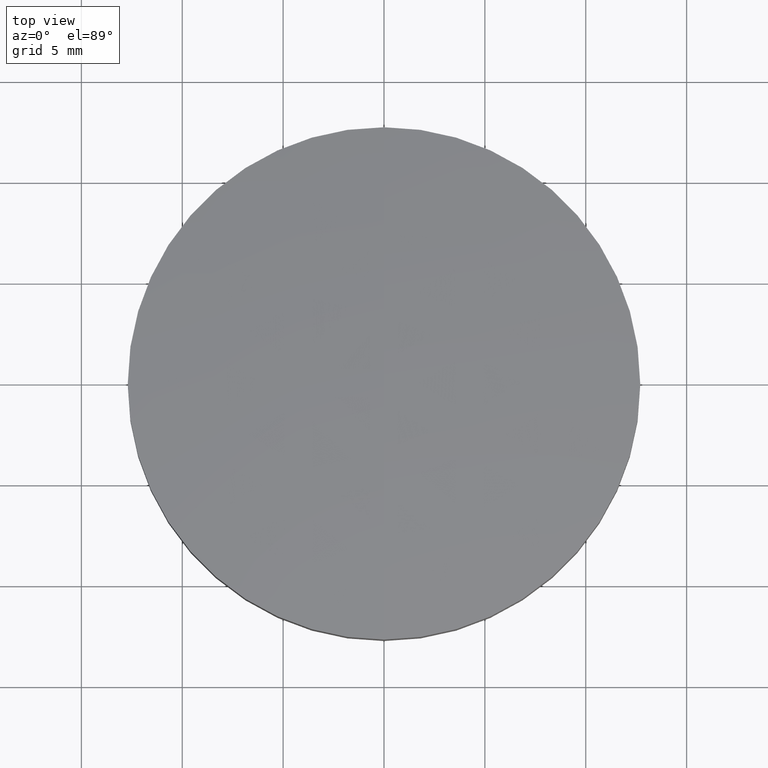
[diagram: clean part render]
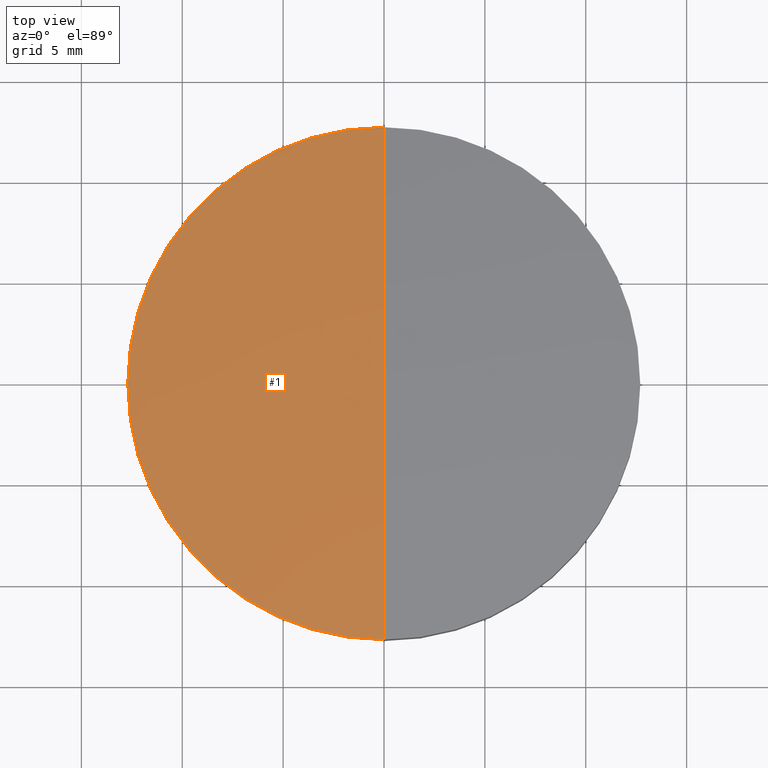
[diagram: same view with one face highlighted and labeled with its STEP entity id]
A machine part, top view. The second image highlights one B-rep face of the part: STEP entity #1.
In plain terms, the highlighted spherical surface has radius 100 mm.
Its self-contained STEP definition (entity closure, byte-faithful):
#1 = ADVANCED_FACE ( 'NONE', ( #125 ), #168, .T. ) ;
#2 = ORIENTED_EDGE ( 'NONE', *, *, #20, .T. ) ;
#3 = VERTEX_POINT ( 'NONE', #68 ) ;
#20 = EDGE_CURVE ( 'NONE', #21, #23, #85, .T. ) ;
#21 = VERTEX_POINT ( 'NONE', #81 ) ;
#23 = VERTEX_POINT ( 'NONE', #137 ) ;
#24 = EDGE_CURVE ( 'NONE', #23, #3, #109, .T. ) ;
#27 = EDGE_CURVE ( 'NONE', #3, #52, #102, .T. ) ;
#34 = EDGE_LOOP ( 'NONE', ( #2, #111, #58, #42 ) ) ;
#42 = ORIENTED_EDGE ( 'NONE', *, *, #54, .F. ) ;
#52 = VERTEX_POINT ( 'NONE', #214 ) ;
#54 = EDGE_CURVE ( 'NONE', #21, #52, #264, .T. ) ;
#58 = ORIENTED_EDGE ( 'NONE', *, *, #27, .T. ) ;
#66 = DIRECTION ( 'NONE',  ( -1.000000000000000000, 0.0000000000000000000, 0.0000000000000000000 ) ) ;
#67 = CARTESIAN_POINT ( 'NONE',  ( 0.0000000000000000000, 0.0000000000000000000, -97.54413107555106400 ) ) ;
#68 = CARTESIAN_POINT ( 'NONE',  ( -1.555250069354418500E-015, -12.69999999999999200, 1.646140624853117200 ) ) ;
#79 = DIRECTION ( 'NONE',  ( 0.0000000000000000000, 1.000000000000000000, 0.0000000000000000000 ) ) ;
#81 = CARTESIAN_POINT ( 'NONE',  ( 0.0000000000000000000, 12.69999999999999200, 1.646140624853117200 ) ) ;
#82 = DIRECTION ( 'NONE',  ( 1.000000000000000000, 0.0000000000000000000, 0.0000000000000000000 ) ) ;
#83 = DIRECTION ( 'NONE',  ( -0.0000000000000000000, -0.0000000000000000000, 1.000000000000000000 ) ) ;
#84 = AXIS2_PLACEMENT_3D ( 'NONE', #124, #83, #82 ) ;
#85 = CIRCLE ( 'NONE', #84, 12.70000000000000100 ) ;
#101 = AXIS2_PLACEMENT_3D ( 'NONE', #166, #165, #164 ) ;
#102 = CIRCLE ( 'NONE', #101, 100.0000000000000000 ) ;
#105 = DIRECTION ( 'NONE',  ( 1.000000000000000000, 0.0000000000000000000, 0.0000000000000000000 ) ) ;
#106 = DIRECTION ( 'NONE',  ( -0.0000000000000000000, -0.0000000000000000000, 1.000000000000000000 ) ) ;
#107 = CARTESIAN_POINT ( 'NONE',  ( 0.0000000000000000000, 0.0000000000000000000, 1.646140624853116300 ) ) ;
#108 = AXIS2_PLACEMENT_3D ( 'NONE', #107, #106, #105 ) ;
#109 = CIRCLE ( 'NONE', #108, 12.70000000000000100 ) ;
#111 = ORIENTED_EDGE ( 'NONE', *, *, #24, .T. ) ;
#124 = CARTESIAN_POINT ( 'NONE',  ( 0.0000000000000000000, 0.0000000000000000000, 1.646140624853116300 ) ) ;
#125 = FACE_OUTER_BOUND ( 'NONE', #34, .T. ) ;
#137 = CARTESIAN_POINT ( 'NONE',  ( -12.70000000000000100, 1.555250069354419300E-015, 1.646140624853116300 ) ) ;
#164 = DIRECTION ( 'NONE',  ( -1.224606353822377300E-016, -1.000000000000000000, 0.0000000000000000000 ) ) ;
#165 = DIRECTION ( 'NONE',  ( -1.000000000000000000, 1.224606353822377300E-016, 0.0000000000000000000 ) ) ;
#166 = CARTESIAN_POINT ( 'NONE',  ( 0.0000000000000000000, 0.0000000000000000000, -97.54413107555106400 ) ) ;
#168 = SPHERICAL_SURFACE ( 'NONE', #184, 100.0000000000000000 ) ;
#184 = AXIS2_PLACEMENT_3D ( 'NONE', #67, #66, #79 ) ;
#214 = CARTESIAN_POINT ( 'NONE',  ( 0.0000000000000000000, 6.123031769111886300E-015, 2.455868924448947800 ) ) ;
#216 = CARTESIAN_POINT ( 'NONE',  ( 0.0000000000000000000, 0.0000000000000000000, -97.54413107555106400 ) ) ;
#217 = AXIS2_PLACEMENT_3D ( 'NONE', #216, #220, #219 ) ;
#219 = DIRECTION ( 'NONE',  ( 0.0000000000000000000, 0.0000000000000000000, -1.000000000000000000 ) ) ;
#220 = DIRECTION ( 'NONE',  ( 1.000000000000000000, 0.0000000000000000000, 0.0000000000000000000 ) ) ;
#264 = CIRCLE ( 'NONE', #217, 100.0000000000000100 ) ;